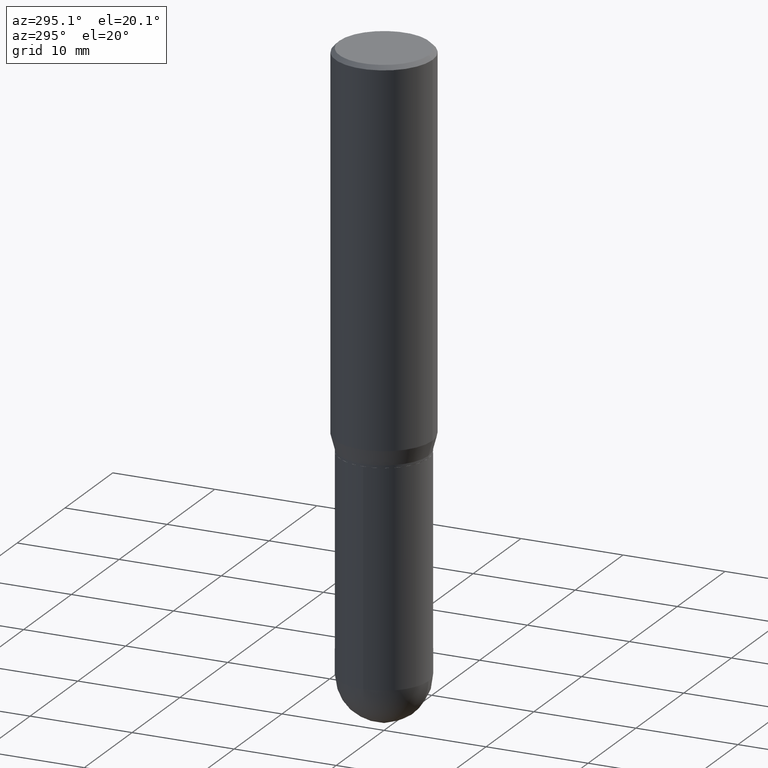
[diagram: clean part render]
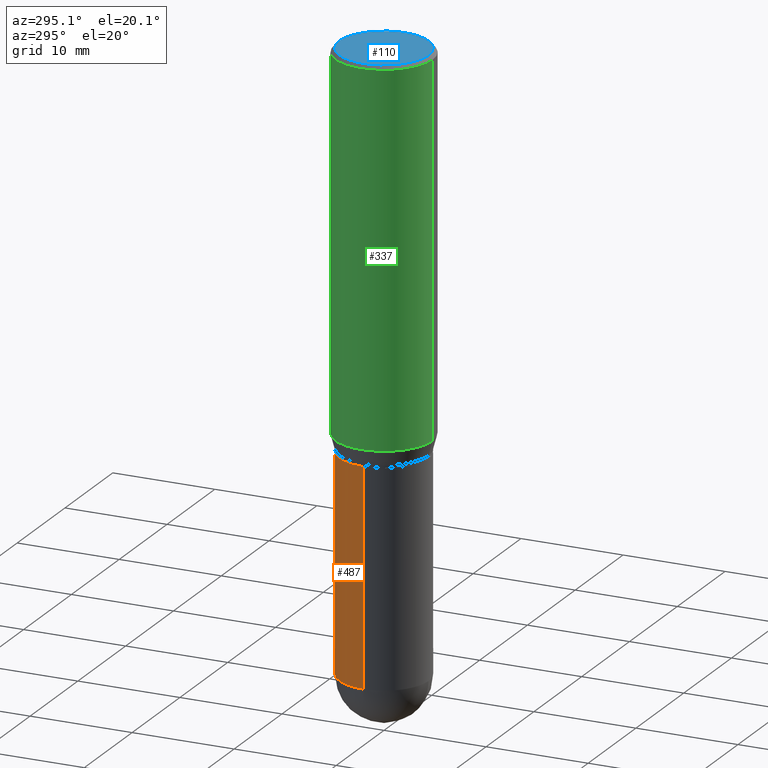
[diagram: same view with three faces highlighted in distinct colors, each labeled with its STEP entity id]
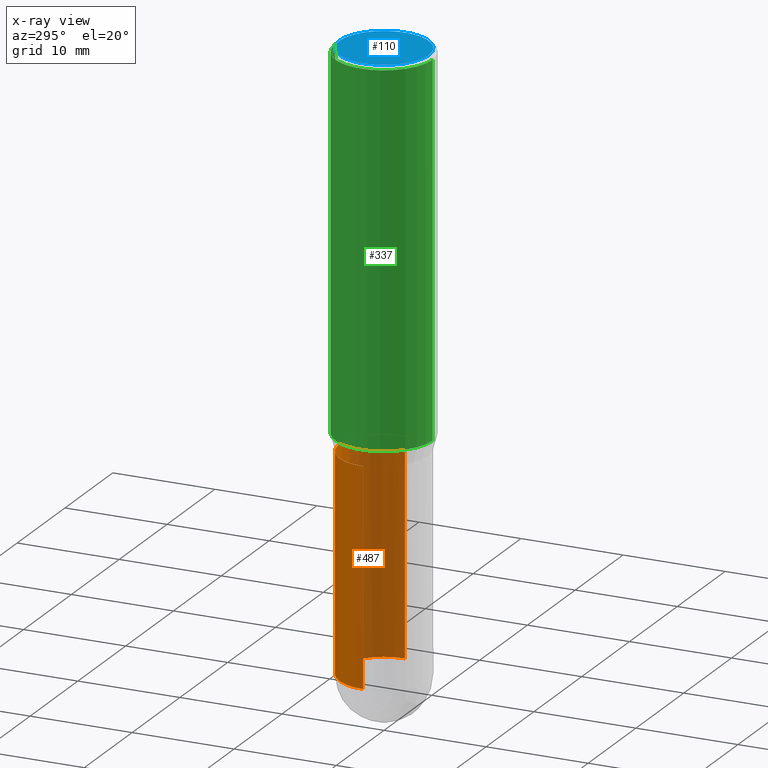
[diagram: x-ray of the same camera — body ghosted, the three highlighted faces saturated]
A machine part, auxiliary view with three faces highlighted in distinct colors.
The next image is the same camera in x-ray (body ghosted, the three faces saturated) — at least one of them is partly hidden behind the body in this view.
Their STEP definitions:

[orange] entity #487 — the highlighted cylindrical surface (partial cylindrical patch) has radius 4.3663 mm, axis along (-0, 0, 1).
#1 = VERTEX_POINT ( 'NONE', #314 ) ;
#8 = VECTOR ( 'NONE', #450, 39.37007874015748143 ) ;
#27 = CARTESIAN_POINT ( 'NONE',  ( 5.693295927679617284E-29, -8.128517704960729139E-15, -2.328100000000000058 ) ) ;
#28 = ORIENTED_EDGE ( 'NONE', *, *, #419, .F. ) ;
#35 = CARTESIAN_POINT ( 'NONE',  ( 1.200371284294326039E-15, 0.1718999999999918094, -2.328100000000000946 ) ) ;
#61 = CARTESIAN_POINT ( 'NONE',  ( 0.1719000000000000250, -7.883241140906993293E-15, -2.328100000000000058 ) ) ;
#82 = VERTEX_POINT ( 'NONE', #35 ) ;
#104 = EDGE_CURVE ( 'NONE', #443, #137, #116, .T. ) ;
#105 = DIRECTION ( 'NONE',  ( -2.445468806185136597E-29, 3.491481338843145583E-15, 1.000000000000000000 ) ) ;
#113 = ORIENTED_EDGE ( 'NONE', *, *, #104, .T. ) ;
#116 = LINE ( 'NONE', #434, #174 ) ;
#118 = ORIENTED_EDGE ( 'NONE', *, *, #123, .T. ) ;
#123 = EDGE_CURVE ( 'NONE', #82, #443, #413, .T. ) ;
#137 = VERTEX_POINT ( 'NONE', #452 ) ;
#143 = DIRECTION ( 'NONE',  ( 1.000000000000000000, -6.982962677686271444E-15, 0.000000000000000000 ) ) ;
#164 = DIRECTION ( 'NONE',  ( 1.000000000000000000, -6.982962677686265922E-15, 4.876176775795935793E-29 ) ) ;
#166 = DIRECTION ( 'NONE',  ( -2.445468806185136597E-29, 3.491481338843145583E-15, 1.000000000000000000 ) ) ;
#174 = VECTOR ( 'NONE', #385, 39.37007874015748143 ) ;
#181 = DIRECTION ( 'NONE',  ( -2.445468806185136597E-29, 3.491481338843145583E-15, 1.000000000000000000 ) ) ;
#185 = EDGE_LOOP ( 'NONE', ( #118, #113, #473, #28, #441 ) ) ;
#187 = CARTESIAN_POINT ( 'NONE',  ( 5.693295927679617284E-29, -8.128517704960729139E-15, -2.328100000000000058 ) ) ;
#190 = AXIS2_PLACEMENT_3D ( 'NONE', #323, #442, #240 ) ;
#223 = EDGE_CURVE ( 'NONE', #483, #82, #244, .T. ) ;
#225 = AXIS2_PLACEMENT_3D ( 'NONE', #408, #166, #164 ) ;
#231 = CYLINDRICAL_SURFACE ( 'NONE', #225, 0.1719000000000000250 ) ;
#240 = DIRECTION ( 'NONE',  ( 1.000000000000000000, -6.982962677686268288E-15, 0.000000000000000000 ) ) ;
#244 = CIRCLE ( 'NONE', #364, 0.1719000000000000250 ) ;
#314 = CARTESIAN_POINT ( 'NONE',  ( 0.1718999999999999695, -6.437593292558987418E-15, -1.500000000000000222 ) ) ;
#323 = CARTESIAN_POINT ( 'NONE',  ( 3.668203209277704895E-29, -5.237222008264718177E-15, -1.500000000000000222 ) ) ;
#333 = DIRECTION ( 'NONE',  ( 1.000000000000000000, -6.982962677686271444E-15, 0.000000000000000000 ) ) ;
#354 = AXIS2_PLACEMENT_3D ( 'NONE', #187, #105, #143 ) ;
#358 = FACE_OUTER_BOUND ( 'NONE', #185, .T. ) ;
#364 = AXIS2_PLACEMENT_3D ( 'NONE', #27, #181, #333 ) ;
#369 = LINE ( 'NONE', #406, #8 ) ;
#385 = DIRECTION ( 'NONE',  ( -2.445468806185136877E-29, 3.491481338843145188E-15, 1.000000000000000000 ) ) ;
#406 = CARTESIAN_POINT ( 'NONE',  ( 0.1719000000000000250, -1.200371284294269241E-15, 8.382147877593214480E-30 ) ) ;
#408 = CARTESIAN_POINT ( 'NONE',  ( 0.000000000000000000, 0.000000000000000000, 0.000000000000000000 ) ) ;
#413 = CIRCLE ( 'NONE', #354, 0.1719000000000000250 ) ;
#419 = EDGE_CURVE ( 'NONE', #483, #1, #369, .T. ) ;
#434 = CARTESIAN_POINT ( 'NONE',  ( -0.1719000000000000250, 1.221422962771612397E-15, -8.455649420148184581E-30 ) ) ;
#441 = ORIENTED_EDGE ( 'NONE', *, *, #223, .T. ) ;
#442 = DIRECTION ( 'NONE',  ( -2.445468806185136597E-29, 3.491481338843145583E-15, 1.000000000000000000 ) ) ;
#443 = VERTEX_POINT ( 'NONE', #488 ) ;
#450 = DIRECTION ( 'NONE',  ( -2.445468806185136877E-29, 3.491481338843145188E-15, 1.000000000000000000 ) ) ;
#452 = CARTESIAN_POINT ( 'NONE',  ( -0.1718999999999999695, -5.461446893841111458E-15, -1.500000000000000222 ) ) ;
#470 = EDGE_CURVE ( 'NONE', #1, #137, #502, .T. ) ;
#473 = ORIENTED_EDGE ( 'NONE', *, *, #470, .F. ) ;
#483 = VERTEX_POINT ( 'NONE', #61 ) ;
#487 = ADVANCED_FACE ( 'NONE', ( #358 ), #231, .T. ) ;
#488 = CARTESIAN_POINT ( 'NONE',  ( -0.1719000000000000250, -5.461446893841112247E-15, -2.328100000000000058 ) ) ;
#502 = CIRCLE ( 'NONE', #190, 0.1718999999999999695 ) ;

[blue] entity #110 — the highlighted planar face has unit normal (0, -0, -1).
#3 = EDGE_CURVE ( 'NONE', #279, #236, #500, .T. ) ;
#6 = EDGE_LOOP ( 'NONE', ( #80, #427 ) ) ;
#80 = ORIENTED_EDGE ( 'NONE', *, *, #188, .T. ) ;
#94 = DIRECTION ( 'NONE',  ( -2.445351922271321948E-29, 3.491648723260347214E-15, 1.000000000000000000 ) ) ;
#110 = ADVANCED_FACE ( 'NONE', ( #338 ), #345, .F. ) ;
#122 = DIRECTION ( 'NONE',  ( -2.445351922271321948E-29, 3.491648723260347214E-15, 1.000000000000000000 ) ) ;
#148 = CARTESIAN_POINT ( 'NONE',  ( 1.204561061900881047E-15, 0.1725000000000000144, -6.358629840937984976E-16 ) ) ;
#188 = EDGE_CURVE ( 'NONE', #236, #279, #256, .T. ) ;
#199 = DIRECTION ( 'NONE',  ( -6.982962677686266711E-15, -1.000000000000000000, 3.491648723260346425E-15 ) ) ;
#226 = CARTESIAN_POINT ( 'NONE',  ( 1.641006194341885501E-45, -2.343146248665151723E-31, -6.710715866277708066E-17 ) ) ;
#236 = VERTEX_POINT ( 'NONE', #422 ) ;
#243 = DIRECTION ( 'NONE',  ( -6.982962677686266711E-15, -1.000000000000000000, 3.491648723260346425E-15 ) ) ;
#256 = CIRCLE ( 'NONE', #320, 0.1725000000000000144 ) ;
#270 = DIRECTION ( 'NONE',  ( 2.445351922271321387E-29, -3.491648723260347608E-15, -1.000000000000000000 ) ) ;
#279 = VERTEX_POINT ( 'NONE', #448 ) ;
#320 = AXIS2_PLACEMENT_3D ( 'NONE', #497, #94, #243 ) ;
#336 = AXIS2_PLACEMENT_3D ( 'NONE', #148, #270, #339 ) ;
#338 = FACE_OUTER_BOUND ( 'NONE', #6, .T. ) ;
#339 = DIRECTION ( 'NONE',  ( 6.982962677686265922E-15, 1.000000000000000000, -3.491648723260347608E-15 ) ) ;
#345 = PLANE ( 'NONE',  #336 ) ;
#422 = CARTESIAN_POINT ( 'NONE',  ( 1.256933281983528323E-15, 0.1725000000000000144, -6.694165634251869824E-16 ) ) ;
#427 = ORIENTED_EDGE ( 'NONE', *, *, #3, .T. ) ;
#448 = CARTESIAN_POINT ( 'NONE',  ( -1.234889639598875176E-15, -0.1725000000000000144, 5.352022460996327471E-16 ) ) ;
#455 = AXIS2_PLACEMENT_3D ( 'NONE', #226, #122, #199 ) ;
#497 = CARTESIAN_POINT ( 'NONE',  ( 1.641006194341885501E-45, -2.343146248665151723E-31, -6.710715866277708066E-17 ) ) ;
#500 = CIRCLE ( 'NONE', #455, 0.1725000000000000144 ) ;

[green] entity #337 — the highlighted cylindrical surface (partial cylindrical patch) has radius 4.7625 mm, axis along (-0, 0, 1).
#10 = CARTESIAN_POINT ( 'NONE',  ( 1.332267629550187651E-15, 0.1875000000000000278, -6.546841356113152012E-16 ) ) ;
#30 = CARTESIAN_POINT ( 'NONE',  ( 0.000000000000000000, 0.000000000000000000, 0.000000000000000000 ) ) ;
#36 = CARTESIAN_POINT ( 'NONE',  ( -1.309305502066140101E-15, -0.1875000000000049960, -1.431780007401924903 ) ) ;
#54 = DIRECTION ( 'NONE',  ( -2.445351922271321948E-29, 3.491648723260347608E-15, 1.000000000000000000 ) ) ;
#56 = CARTESIAN_POINT ( 'NONE',  ( -1.309305502066175008E-15, -0.1875000000000000278, 6.546841356113152012E-16 ) ) ;
#66 = AXIS2_PLACEMENT_3D ( 'NONE', #360, #387, #379 ) ;
#75 = DIRECTION ( 'NONE',  ( -6.982962677686265922E-15, -1.000000000000000000, 3.494488891895536035E-15 ) ) ;
#86 = DIRECTION ( 'NONE',  ( -2.445351922271321948E-29, 3.491648723260347608E-15, 1.000000000000000000 ) ) ;
#108 = FACE_OUTER_BOUND ( 'NONE', #390, .T. ) ;
#134 = CARTESIAN_POINT ( 'NONE',  ( 1.332267629550222558E-15, 0.1874999999999950318, -1.431780007401926014 ) ) ;
#149 = DIRECTION ( 'NONE',  ( -2.445351922271321948E-29, 3.491648723260347214E-15, 1.000000000000000000 ) ) ;
#152 = AXIS2_PLACEMENT_3D ( 'NONE', #307, #149, #75 ) ;
#159 = CARTESIAN_POINT ( 'NONE',  ( -1.309305502066174614E-15, -0.1875000000000000833, -0.01499999999999941137 ) ) ;
#183 = CIRCLE ( 'NONE', #152, 0.1875000000000000278 ) ;
#186 = ORIENTED_EDGE ( 'NONE', *, *, #317, .T. ) ;
#194 = ORIENTED_EDGE ( 'NONE', *, *, #409, .F. ) ;
#195 = VERTEX_POINT ( 'NONE', #134 ) ;
#206 = LINE ( 'NONE', #10, #414 ) ;
#211 = ORIENTED_EDGE ( 'NONE', *, *, #494, .T. ) ;
#216 = CYLINDRICAL_SURFACE ( 'NONE', #501, 0.1875000000000000278 ) ;
#277 = VERTEX_POINT ( 'NONE', #318 ) ;
#299 = DIRECTION ( 'NONE',  ( -2.445351922271321948E-29, 3.491648723260347214E-15, 1.000000000000000000 ) ) ;
#307 = CARTESIAN_POINT ( 'NONE',  ( 3.668027883406999037E-31, -5.237473084890543500E-17, -0.01500000000000006710 ) ) ;
#317 = EDGE_CURVE ( 'NONE', #195, #395, #456, .T. ) ;
#318 = CARTESIAN_POINT ( 'NONE',  ( 1.332267629550222953E-15, 0.1874999999999999445, -0.01500000000000072109 ) ) ;
#337 = ADVANCED_FACE ( 'NONE', ( #108 ), #216, .T. ) ;
#343 = ORIENTED_EDGE ( 'NONE', *, *, #380, .F. ) ;
#360 = CARTESIAN_POINT ( 'NONE',  ( 3.501205993369945932E-29, -4.999272834834623163E-15, -1.431780007401925348 ) ) ;
#367 = VECTOR ( 'NONE', #54, 39.37007874015748143 ) ;
#377 = DIRECTION ( 'NONE',  ( -6.982962677686265922E-15, -1.000000000000000000, 3.491648723260347214E-15 ) ) ;
#379 = DIRECTION ( 'NONE',  ( -6.982962677686265922E-15, -1.000000000000000000, 2.913971193241880372E-15 ) ) ;
#380 = EDGE_CURVE ( 'NONE', #277, #478, #183, .T. ) ;
#387 = DIRECTION ( 'NONE',  ( -2.445351922271321948E-29, 3.491648723260347214E-15, 1.000000000000000000 ) ) ;
#390 = EDGE_LOOP ( 'NONE', ( #194, #186, #211, #343 ) ) ;
#395 = VERTEX_POINT ( 'NONE', #36 ) ;
#409 = EDGE_CURVE ( 'NONE', #195, #277, #206, .T. ) ;
#414 = VECTOR ( 'NONE', #86, 39.37007874015748143 ) ;
#451 = LINE ( 'NONE', #56, #367 ) ;
#456 = CIRCLE ( 'NONE', #66, 0.1875000000000000278 ) ;
#478 = VERTEX_POINT ( 'NONE', #159 ) ;
#494 = EDGE_CURVE ( 'NONE', #395, #478, #451, .T. ) ;
#501 = AXIS2_PLACEMENT_3D ( 'NONE', #30, #299, #377 ) ;